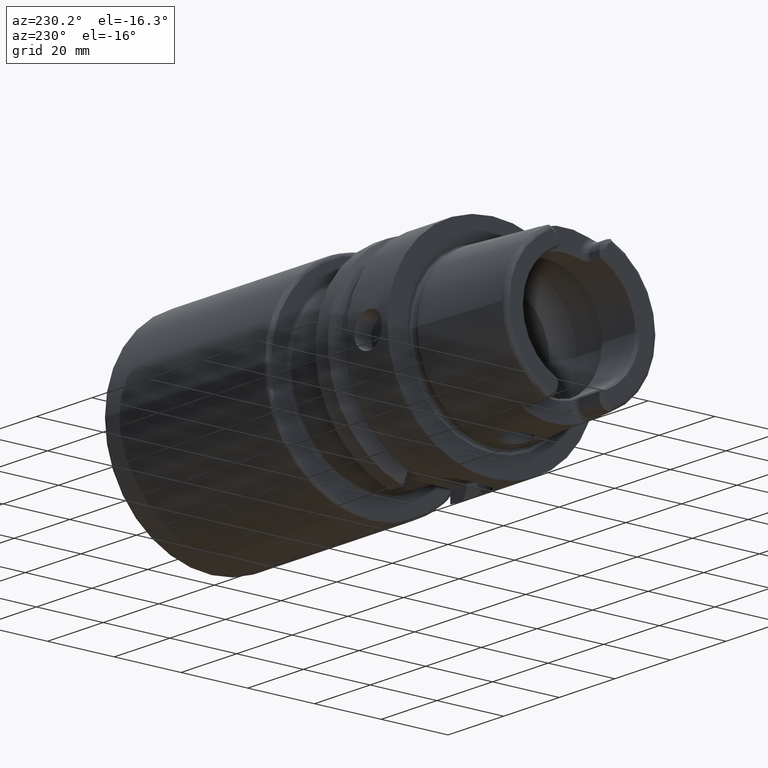
[diagram: clean part render]
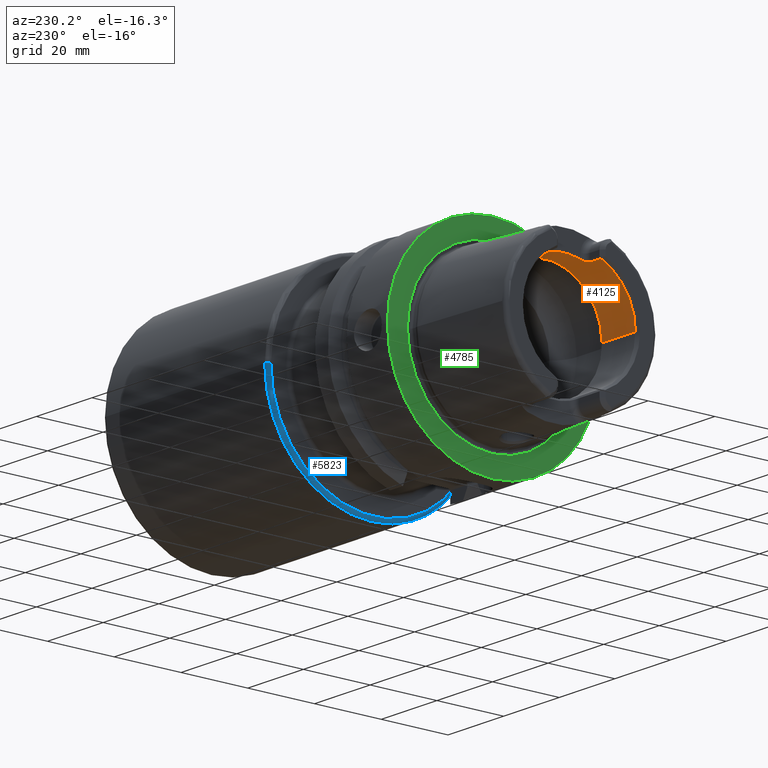
[diagram: same view with three faces highlighted in distinct colors, each labeled with its STEP entity id]
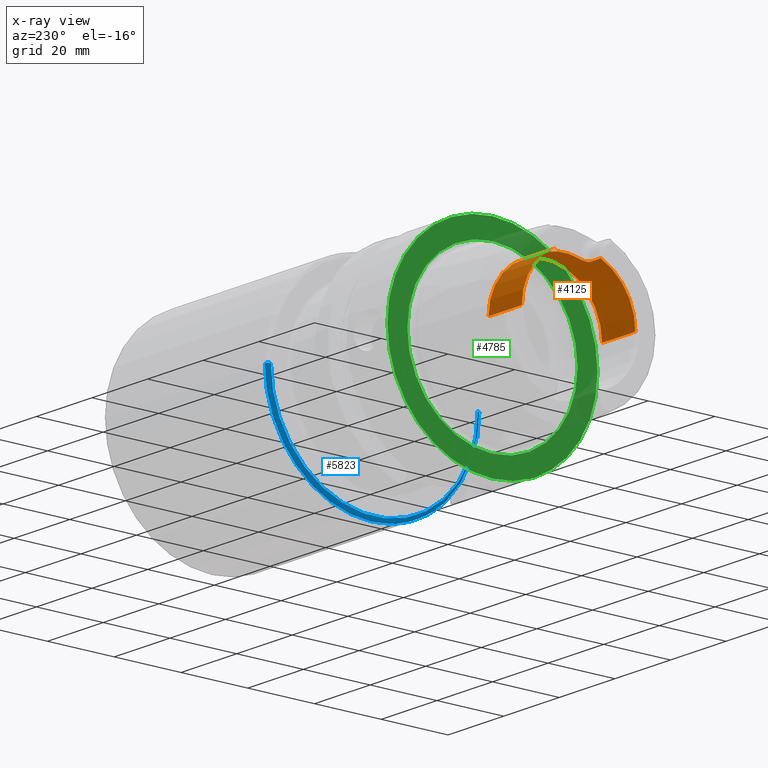
[diagram: x-ray of the same camera — body ghosted, the three highlighted faces saturated]
A machine part, auxiliary view with three faces highlighted in distinct colors.
The next image is the same camera in x-ray (body ghosted, the three faces saturated) — at least one of them is partly hidden behind the body in this view.
Their STEP definitions:

[orange] entity #4125 — the highlighted cylindrical surface (partial cylindrical patch) has radius 17 mm, axis along (1, 0, 0).
#362=CARTESIAN_POINT('',(-3.1E1,0.E0,0.E0));
#363=DIRECTION('',(1.E0,0.E0,0.E0));
#364=DIRECTION('',(0.E0,1.E0,0.E0));
#365=AXIS2_PLACEMENT_3D('',#362,#363,#364);
#394=CARTESIAN_POINT('',(-3.1E1,0.E0,0.E0));
#395=DIRECTION('',(1.E0,0.E0,0.E0));
#396=DIRECTION('',(0.E0,-3.910839598454E-1,9.203550056102E-1));
#397=AXIS2_PLACEMENT_3D('',#394,#395,#396);
#559=DIRECTION('',(1.E0,0.E0,0.E0));
#560=VECTOR('',#559,3.5E0);
#561=CARTESIAN_POINT('',(-3.1E1,6.648427317371E0,1.564603509537E1));
#562=LINE('',#561,#560);
#563=CARTESIAN_POINT('',(-2.571132486541E1,4.77E0,1.631708000838E1));
#564=CARTESIAN_POINT('',(-2.570911463045E1,4.851899929325E0,1.629313806150E1));
#565=CARTESIAN_POINT('',(-2.571539985496E1,5.014300274441E0,1.624433189365E1));
#566=CARTESIAN_POINT('',(-2.575723226820E1,5.255574737127E0,1.616786516493E1));
#567=CARTESIAN_POINT('',(-2.583019759937E1,5.488813832187E0,1.609012650164E1));
#568=CARTESIAN_POINT('',(-2.593222755914E1,5.709311810621E0,1.601314455534E1));
#569=CARTESIAN_POINT('',(-2.606208908479E1,5.913640570765E0,1.593873381343E1));
#570=CARTESIAN_POINT('',(-2.621579663552E1,6.097621457296E0,1.586916363348E1));
#571=CARTESIAN_POINT('',(-2.639004084082E1,6.257927374534E0,1.580654307494E1));
#572=CARTESIAN_POINT('',(-2.658287946713E1,6.394281114327E0,1.575179653388E1));
#573=CARTESIAN_POINT('',(-2.679414325254E1,6.504885265694E0,1.570637036291E1));
#574=CARTESIAN_POINT('',(-2.702072491693E1,6.586740689310E0,1.567215753589E1));
#575=CARTESIAN_POINT('',(-2.725841410654E1,6.637201205541E0,1.565081274977E1));
#576=CARTESIAN_POINT('',(-2.741884128981E1,6.648427317371E0,1.564603509537E1));
#577=CARTESIAN_POINT('',(-2.75E1,6.648427317371E0,1.564603509537E1));
#579=CARTESIAN_POINT('',(-2.571132486541E1,-4.77E0,1.631708000838E1));
#580=CARTESIAN_POINT('',(-2.571132486541E1,-4.151241293882E0,1.649796280277E1));
#581=CARTESIAN_POINT('',(-2.571132889067E1,-2.893125957956E0,1.678926713017E1));
#582=CARTESIAN_POINT('',(-2.571132738120E1,-9.685489423330E-1,
1.700915920873E1));
#583=CARTESIAN_POINT('',(-2.571132738120E1,9.685489423332E-1,1.700915920873E1));
#584=CARTESIAN_POINT('',(-2.571132889067E1,2.893125957955E0,1.678926713017E1));
#585=CARTESIAN_POINT('',(-2.571132486541E1,4.151241293884E0,1.649796280277E1));
#586=CARTESIAN_POINT('',(-2.571132486541E1,4.77E0,1.631708000838E1));
#588=CARTESIAN_POINT('',(-2.75E1,-6.648427317371E0,1.564603509537E1));
#589=CARTESIAN_POINT('',(-2.741886739757E1,-6.648427317371E0,1.564603509537E1));
#590=CARTESIAN_POINT('',(-2.725846026145E1,-6.637216591931E0,1.565080624648E1));
#591=CARTESIAN_POINT('',(-2.702047669465E1,-6.586680175792E0,1.567218311946E1));
#592=CARTESIAN_POINT('',(-2.679396033382E1,-6.504789416100E0,1.570640995358E1));
#593=CARTESIAN_POINT('',(-2.658322850975E1,-6.394447887183E0,1.575172726773E1));
#594=CARTESIAN_POINT('',(-2.639118887217E1,-6.258799446744E0,1.580619508840E1));
#595=CARTESIAN_POINT('',(-2.621738949273E1,-6.099242016698E0,1.586853752436E1));
#596=CARTESIAN_POINT('',(-2.606384631874E1,-5.916012648986E0,1.593785105703E1));
#597=CARTESIAN_POINT('',(-2.593366664869E1,-5.711955003317E0,1.601220141386E1));
#598=CARTESIAN_POINT('',(-2.583107108488E1,-5.491206341112E0,1.608931480424E1));
#599=CARTESIAN_POINT('',(-2.575746962839E1,-5.256749499660E0,1.616748882623E1));
#600=CARTESIAN_POINT('',(-2.571543732099E1,-5.014873021211E0,1.624415783103E1));
#601=CARTESIAN_POINT('',(-2.570911008721E1,-4.852068278437E0,1.629308884771E1));
#602=CARTESIAN_POINT('',(-2.571132486541E1,-4.77E0,1.631708000838E1));
#604=DIRECTION('',(1.E0,0.E0,0.E0));
#605=VECTOR('',#604,3.5E0);
#606=CARTESIAN_POINT('',(-3.1E1,-6.648427317371E0,1.564603509537E1));
#607=LINE('',#606,#605);
#608=CARTESIAN_POINT('',(-1.899602540378E1,0.E0,0.E0));
#609=DIRECTION('',(1.E0,0.E0,0.E0));
#610=DIRECTION('',(0.E0,1.E0,0.E0));
#611=AXIS2_PLACEMENT_3D('',#608,#609,#610);
#666=DIRECTION('',(-1.E0,0.E0,0.E0));
#667=VECTOR('',#666,1.200397459622E1);
#668=CARTESIAN_POINT('',(-1.899602540378E1,1.7E1,0.E0));
#669=LINE('',#668,#667);
#675=DIRECTION('',(-1.E0,0.E0,0.E0));
#676=VECTOR('',#675,1.200397459622E1);
#677=CARTESIAN_POINT('',(-1.899602540378E1,-1.7E1,0.E0));
#678=LINE('',#677,#676);
#3067=CARTESIAN_POINT('',(-1.899602540378E1,1.7E1,0.E0));
#3068=VERTEX_POINT('',#3067);
#3069=CARTESIAN_POINT('',(-3.1E1,1.7E1,0.E0));
#3070=VERTEX_POINT('',#3069);
#3079=CARTESIAN_POINT('',(-1.899602540378E1,-1.7E1,0.E0));
#3080=VERTEX_POINT('',#3079);
#3081=CARTESIAN_POINT('',(-3.1E1,-1.7E1,0.E0));
#3082=VERTEX_POINT('',#3081);
#3148=CARTESIAN_POINT('',(-2.75E1,6.648427317371E0,1.564603509537E1));
#3149=VERTEX_POINT('',#3148);
#3150=CARTESIAN_POINT('',(-2.571132486541E1,4.77E0,1.631708000838E1));
#3151=VERTEX_POINT('',#3150);
#3152=CARTESIAN_POINT('',(-2.75E1,-6.648427317371E0,1.564603509537E1));
#3153=VERTEX_POINT('',#3152);
#3154=CARTESIAN_POINT('',(-2.571132486541E1,-4.77E0,1.631708000838E1));
#3155=VERTEX_POINT('',#3154);
#3160=CARTESIAN_POINT('',(-3.1E1,6.648427317371E0,1.564603509537E1));
#3161=VERTEX_POINT('',#3160);
#3162=CARTESIAN_POINT('',(-3.1E1,-6.648427317371E0,1.564603509537E1));
#3163=VERTEX_POINT('',#3162);
#4104=CARTESIAN_POINT('',(-3.41E1,0.E0,0.E0));
#4105=DIRECTION('',(1.E0,0.E0,0.E0));
#4106=DIRECTION('',(0.E0,-1.E0,0.E0));
#4107=AXIS2_PLACEMENT_3D('',#4104,#4105,#4106);
#4108=CYLINDRICAL_SURFACE('',#4107,1.7E1);
#4109=ORIENTED_EDGE('',*,*,#3841,.T.);
#4111=ORIENTED_EDGE('',*,*,#4110,.F.);
#4112=ORIENTED_EDGE('',*,*,#3989,.F.);
#4113=ORIENTED_EDGE('',*,*,#4044,.F.);
#4114=ORIENTED_EDGE('',*,*,#4059,.F.);
#4115=ORIENTED_EDGE('',*,*,#3806,.T.);
#4117=ORIENTED_EDGE('',*,*,#4116,.F.);
#4119=ORIENTED_EDGE('',*,*,#4118,.F.);
#4121=ORIENTED_EDGE('',*,*,#4120,.T.);
#4122=ORIENTED_EDGE('',*,*,#3786,.T.);
#4123=EDGE_LOOP('',(#4109,#4111,#4112,#4113,#4114,#4115,#4117,#4119,#4121,
#4122));
#4124=FACE_OUTER_BOUND('',#4123,.F.);
#4125=ADVANCED_FACE('',(#4124),#4108,.F.);
#366=CIRCLE('',#365,1.7E1);
#398=CIRCLE('',#397,1.7E1);
#578=B_SPLINE_CURVE_WITH_KNOTS('',3,(#563,#564,#565,#566,#567,#568,#569,#570,
#571,#572,#573,#574,#575,#576,#577),.UNSPECIFIED.,.F.,.F.,(4,1,1,1,1,1,1,1,1,1,
1,1,4),(0.E0,8.333333333333E-2,1.666666666667E-1,2.5E-1,3.333333333333E-1,
4.166666666667E-1,5.E-1,5.833333333333E-1,6.666666666667E-1,7.5E-1,
8.333333333333E-1,9.166666666667E-1,1.E0),.UNSPECIFIED.);
#587=B_SPLINE_CURVE_WITH_KNOTS('',3,(#579,#580,#581,#582,#583,#584,#585,#586),
.UNSPECIFIED.,.F.,.F.,(4,1,1,1,1,4),(0.E0,2.E-1,4.E-1,6.E-1,8.E-1,1.E0),
.UNSPECIFIED.);
#603=B_SPLINE_CURVE_WITH_KNOTS('',3,(#588,#589,#590,#591,#592,#593,#594,#595,
#596,#597,#598,#599,#600,#601,#602),.UNSPECIFIED.,.F.,.F.,(4,1,1,1,1,1,1,1,1,1,
1,1,4),(0.E0,8.333333333333E-2,1.666666666667E-1,2.5E-1,3.333333333333E-1,
4.166666666667E-1,5.E-1,5.833333333333E-1,6.666666666667E-1,7.5E-1,
8.333333333333E-1,9.166666666667E-1,1.E0),.UNSPECIFIED.);
#612=CIRCLE('',#611,1.7E1);
#3786=EDGE_CURVE('',#3070,#3161,#366,.T.);
#3806=EDGE_CURVE('',#3163,#3082,#398,.T.);
#3841=EDGE_CURVE('',#3161,#3149,#562,.T.);
#3989=EDGE_CURVE('',#3155,#3151,#587,.T.);
#4044=EDGE_CURVE('',#3153,#3155,#603,.T.);
#4059=EDGE_CURVE('',#3163,#3153,#607,.T.);
#4110=EDGE_CURVE('',#3151,#3149,#578,.T.);
#4116=EDGE_CURVE('',#3080,#3082,#678,.T.);
#4118=EDGE_CURVE('',#3068,#3080,#612,.T.);
#4120=EDGE_CURVE('',#3068,#3070,#669,.T.);

[blue] entity #5823 — the highlighted toroidal blend (fillet) surface has major radius 31 mm and minor (blend) radius 1 mm.
#1458=CARTESIAN_POINT('',(4.25E1,0.E0,0.E0));
#1459=DIRECTION('',(1.E0,0.E0,0.E0));
#1460=DIRECTION('',(0.E0,-1.E0,0.E0));
#1461=AXIS2_PLACEMENT_3D('',#1458,#1459,#1460);
#2105=CARTESIAN_POINT('',(4.35E1,-3.1E1,2.442879232234E-12));
#2106=DIRECTION('',(0.E0,-7.880284966233E-14,-1.E0));
#2107=DIRECTION('',(0.E0,-1.E0,7.880284966233E-14));
#2108=AXIS2_PLACEMENT_3D('',#2105,#2106,#2107);
#2187=CARTESIAN_POINT('',(4.35E1,0.E0,0.E0));
#2188=DIRECTION('',(1.E0,0.E0,0.E0));
#2189=DIRECTION('',(0.E0,-1.E0,0.E0));
#2190=AXIS2_PLACEMENT_3D('',#2187,#2188,#2189);
#2274=CARTESIAN_POINT('',(4.35E1,3.1E1,-2.474215277104E-12));
#2275=DIRECTION('',(0.E0,7.981375976795E-14,1.E0));
#2276=DIRECTION('',(0.E0,1.E0,-7.981375976795E-14));
#2277=AXIS2_PLACEMENT_3D('',#2274,#2275,#2276);
#3506=CARTESIAN_POINT('',(4.35E1,-3.2E1,0.E0));
#3507=CARTESIAN_POINT('',(4.35E1,3.2E1,0.E0));
#3508=VERTEX_POINT('',#3506);
#3509=VERTEX_POINT('',#3507);
#3510=CARTESIAN_POINT('',(4.25E1,-3.1E1,-3.512634116542E-14));
#3511=CARTESIAN_POINT('',(4.25E1,3.1E1,0.E0));
#3512=VERTEX_POINT('',#3510);
#3513=VERTEX_POINT('',#3511);
#5809=CARTESIAN_POINT('',(4.35E1,0.E0,0.E0));
#5810=DIRECTION('',(1.E0,0.E0,0.E0));
#5811=DIRECTION('',(0.E0,-9.999968285806E-1,2.518497337593E-3));
#5812=AXIS2_PLACEMENT_3D('',#5809,#5810,#5811);
#5813=TOROIDAL_SURFACE('',#5812,3.1E1,1.E0);
#5815=ORIENTED_EDGE('',*,*,#5814,.T.);
#5817=ORIENTED_EDGE('',*,*,#5816,.T.);
#5818=ORIENTED_EDGE('',*,*,#5138,.F.);
#5820=ORIENTED_EDGE('',*,*,#5819,.F.);
#5821=EDGE_LOOP('',(#5815,#5817,#5818,#5820));
#5822=FACE_OUTER_BOUND('',#5821,.F.);
#5823=ADVANCED_FACE('',(#5822),#5813,.T.);
#1462=CIRCLE('',#1461,3.1E1);
#2109=CIRCLE('',#2108,1.E0);
#2191=CIRCLE('',#2190,3.2E1);
#2278=CIRCLE('',#2277,1.E0);
#5138=EDGE_CURVE('',#3512,#3513,#1462,.T.);
#5814=EDGE_CURVE('',#3508,#3509,#2191,.T.);
#5816=EDGE_CURVE('',#3509,#3513,#2278,.T.);
#5819=EDGE_CURVE('',#3508,#3512,#2109,.T.);

[green] entity #4785 — the highlighted planar face has unit normal (1, 0, 0).
#1068=CARTESIAN_POINT('',(-1.421085471520E-14,0.E0,0.E0));
#1069=DIRECTION('',(1.E0,0.E0,0.E0));
#1070=DIRECTION('',(0.E0,1.E0,0.E0));
#1071=AXIS2_PLACEMENT_3D('',#1068,#1069,#1070);
#1073=CARTESIAN_POINT('',(-1.421085471520E-14,0.E0,0.E0));
#1074=DIRECTION('',(-1.E0,0.E0,0.E0));
#1075=DIRECTION('',(0.E0,1.E0,0.E0));
#1076=AXIS2_PLACEMENT_3D('',#1073,#1074,#1075);
#1078=CARTESIAN_POINT('',(0.E0,0.E0,0.E0));
#1079=DIRECTION('',(-1.E0,0.E0,0.E0));
#1080=DIRECTION('',(0.E0,-1.E0,0.E0));
#1081=AXIS2_PLACEMENT_3D('',#1078,#1079,#1080);
#1083=CARTESIAN_POINT('',(0.E0,0.E0,0.E0));
#1084=DIRECTION('',(-1.E0,0.E0,0.E0));
#1085=DIRECTION('',(0.E0,1.E0,0.E0));
#1086=AXIS2_PLACEMENT_3D('',#1083,#1084,#1085);
#3019=CARTESIAN_POINT('',(-1.421085471520E-14,3.15E1,0.E0));
#3020=CARTESIAN_POINT('',(-1.421085471520E-14,-3.15E1,0.E0));
#3021=VERTEX_POINT('',#3019);
#3022=VERTEX_POINT('',#3020);
#3047=CARTESIAN_POINT('',(0.E0,-2.549042414966E1,0.E0));
#3048=VERTEX_POINT('',#3047);
#3049=CARTESIAN_POINT('',(0.E0,2.549042414966E1,0.E0));
#3050=VERTEX_POINT('',#3049);
#4770=CARTESIAN_POINT('',(0.E0,0.E0,0.E0));
#4771=DIRECTION('',(1.E0,0.E0,0.E0));
#4772=DIRECTION('',(0.E0,-1.E0,0.E0));
#4773=AXIS2_PLACEMENT_3D('',#4770,#4771,#4772);
#4774=PLANE('',#4773);
#4776=ORIENTED_EDGE('',*,*,#4775,.T.);
#4778=ORIENTED_EDGE('',*,*,#4777,.F.);
#4779=EDGE_LOOP('',(#4776,#4778));
#4780=FACE_OUTER_BOUND('',#4779,.F.);
#4781=ORIENTED_EDGE('',*,*,#4765,.T.);
#4782=ORIENTED_EDGE('',*,*,#4749,.T.);
#4783=EDGE_LOOP('',(#4781,#4782));
#4784=FACE_BOUND('',#4783,.F.);
#4785=ADVANCED_FACE('',(#4780,#4784),#4774,.F.);
#1072=CIRCLE('',#1071,3.15E1);
#1077=CIRCLE('',#1076,3.15E1);
#1082=CIRCLE('',#1081,2.549042414966E1);
#1087=CIRCLE('',#1086,2.549042414966E1);
#4749=EDGE_CURVE('',#3050,#3048,#1087,.T.);
#4765=EDGE_CURVE('',#3048,#3050,#1082,.T.);
#4775=EDGE_CURVE('',#3021,#3022,#1072,.T.);
#4777=EDGE_CURVE('',#3021,#3022,#1077,.T.);